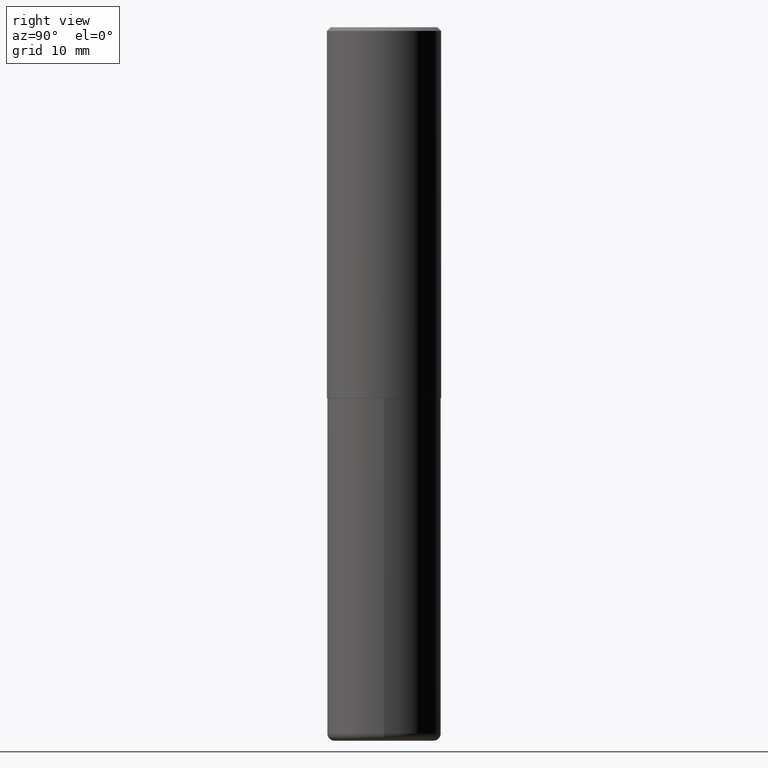
[diagram: clean part render]
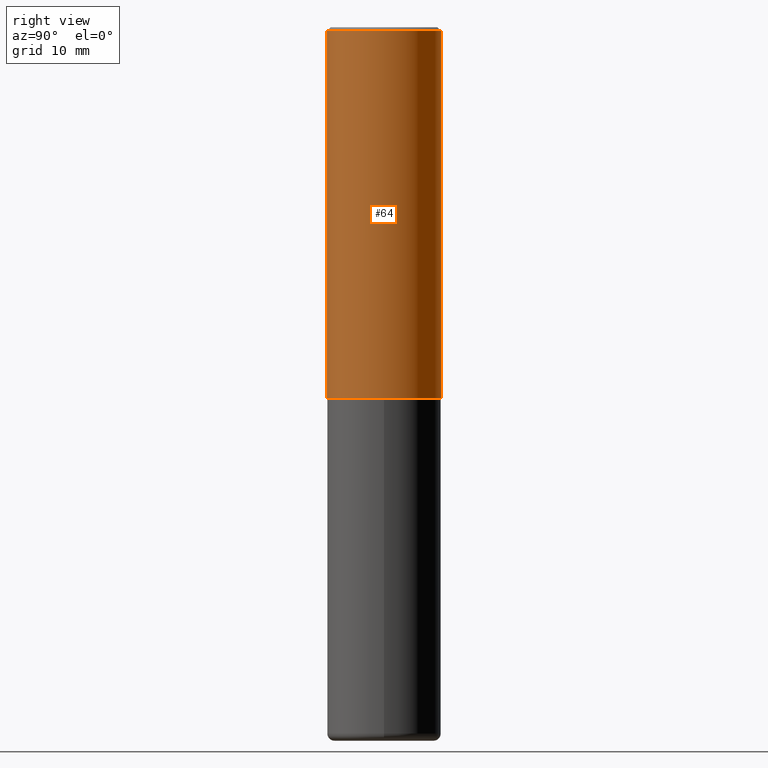
[diagram: same view with one face highlighted and labeled with its STEP entity id]
A machine part, right view. The second image highlights one B-rep face of the part: STEP entity #64.
In plain terms, the highlighted cylindrical surface (partial cylindrical patch) has radius 7.9997 mm, axis along (-0, 0, 1).
Its self-contained STEP definition (entity closure, byte-faithful):
#13 = CARTESIAN_POINT ( 'NONE',  ( 2.199284095337290660E-15, 0.3149500000000000632, -0.02000000000000116615 ) ) ;
#14 = CARTESIAN_POINT ( 'NONE',  ( -2.199284095337291449E-15, -0.3149500000000002853, 1.098966783218907654E-15 ) ) ;
#16 = AXIS2_PLACEMENT_3D ( 'NONE', #118, #296, #352 ) ;
#17 = VECTOR ( 'NONE', #130, 39.37007874015748143 ) ;
#38 = AXIS2_PLACEMENT_3D ( 'NONE', #353, #331, #43 ) ;
#43 = DIRECTION ( 'NONE',  ( -6.982962677686265922E-15, -1.000000000000000000, 3.489337301853966019E-15 ) ) ;
#64 = ADVANCED_FACE ( 'NONE', ( #385 ), #72, .T. ) ;
#69 = ORIENTED_EDGE ( 'NONE', *, *, #247, .F. ) ;
#72 = CYLINDRICAL_SURFACE ( 'NONE', #38, 0.3149500000000002853 ) ;
#94 = CARTESIAN_POINT ( 'NONE',  ( 2.237854346276437168E-15, 0.3149500000000002853, -1.098966783218907654E-15 ) ) ;
#111 = DIRECTION ( 'NONE',  ( -6.982962677686264344E-15, -1.000000000000000000, 3.483117034309589160E-15 ) ) ;
#112 = CARTESIAN_POINT ( 'NONE',  ( -2.199284095337241750E-15, -0.3149500000000075017, -2.046199999999998909 ) ) ;
#118 = CARTESIAN_POINT ( 'NONE',  ( 5.006981786664901703E-29, -7.139881987053586380E-15, -2.046200000000000241 ) ) ;
#126 = LINE ( 'NONE', #94, #17 ) ;
#128 = LINE ( 'NONE', #14, #375 ) ;
#130 = DIRECTION ( 'NONE',  ( -2.446965979212638158E-29, 3.489337301853966019E-15, 1.000000000000000000 ) ) ;
#140 = CIRCLE ( 'NONE', #16, 0.3149500000000003408 ) ;
#145 = DIRECTION ( 'NONE',  ( -2.446965979212638438E-29, 3.489337301853966019E-15, 1.000000000000000000 ) ) ;
#149 = CARTESIAN_POINT ( 'NONE',  ( 4.893931958425293692E-31, -6.978674603707955407E-17, -0.02000000000000006981 ) ) ;
#170 = EDGE_CURVE ( 'NONE', #377, #182, #238, .T. ) ;
#182 = VERTEX_POINT ( 'NONE', #13 ) ;
#210 = EDGE_CURVE ( 'NONE', #406, #403, #140, .T. ) ;
#238 = CIRCLE ( 'NONE', #320, 0.3149500000000001743 ) ;
#247 = EDGE_CURVE ( 'NONE', #406, #377, #128, .T. ) ;
#249 = CARTESIAN_POINT ( 'NONE',  ( -2.160713844398144151E-15, -0.3149500000000002298, -0.01999999999999896999 ) ) ;
#257 = ORIENTED_EDGE ( 'NONE', *, *, #210, .T. ) ;
#263 = EDGE_LOOP ( 'NONE', ( #257, #347, #346, #69 ) ) ;
#264 = CARTESIAN_POINT ( 'NONE',  ( 2.237854346276462412E-15, 0.3149499999999931799, -2.046200000000001129 ) ) ;
#296 = DIRECTION ( 'NONE',  ( -2.446965979212638438E-29, 3.489337301853966019E-15, 1.000000000000000000 ) ) ;
#311 = DIRECTION ( 'NONE',  ( -2.446965979212638158E-29, 3.489337301853966019E-15, 1.000000000000000000 ) ) ;
#320 = AXIS2_PLACEMENT_3D ( 'NONE', #149, #145, #111 ) ;
#331 = DIRECTION ( 'NONE',  ( -2.446965979212638438E-29, 3.489337301853966019E-15, 1.000000000000000000 ) ) ;
#346 = ORIENTED_EDGE ( 'NONE', *, *, #170, .F. ) ;
#347 = ORIENTED_EDGE ( 'NONE', *, *, #359, .T. ) ;
#352 = DIRECTION ( 'NONE',  ( -6.982962677686265922E-15, -1.000000000000000000, 3.469564049740289220E-15 ) ) ;
#353 = CARTESIAN_POINT ( 'NONE',  ( 0.000000000000000000, 0.000000000000000000, 0.000000000000000000 ) ) ;
#359 = EDGE_CURVE ( 'NONE', #403, #182, #126, .T. ) ;
#375 = VECTOR ( 'NONE', #311, 39.37007874015748143 ) ;
#377 = VERTEX_POINT ( 'NONE', #249 ) ;
#385 = FACE_OUTER_BOUND ( 'NONE', #263, .T. ) ;
#403 = VERTEX_POINT ( 'NONE', #264 ) ;
#406 = VERTEX_POINT ( 'NONE', #112 ) ;